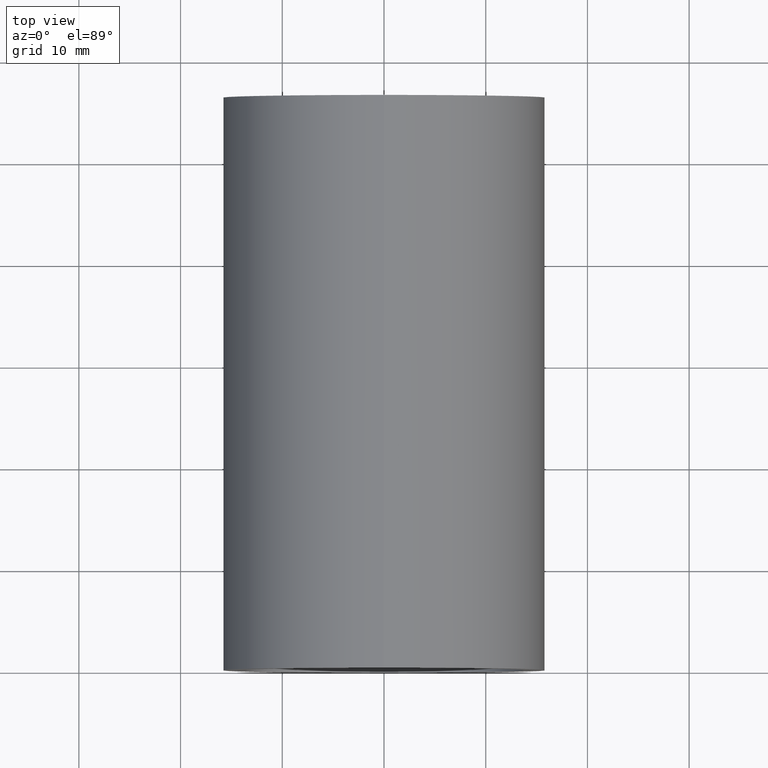
[diagram: clean part render]
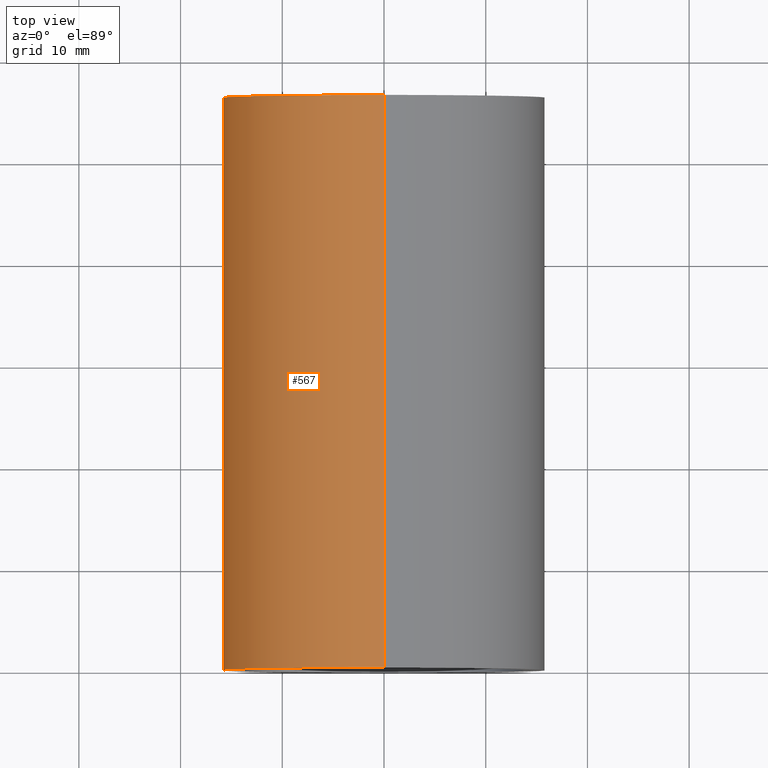
[diagram: same view with one face highlighted and labeled with its STEP entity id]
A machine part, top view. The second image highlights one B-rep face of the part: STEP entity #567.
In plain terms, the highlighted cylindrical surface (partial cylindrical patch) has radius 15.85 mm, axis along (-0, 1, -0).
Its self-contained STEP definition (entity closure, byte-faithful):
#7 = LINE ( 'NONE', #386, #153 ) ;
#11 = CARTESIAN_POINT ( 'NONE',  ( 1.941065176648557100E-015, 56.29999999999999000, -15.85000000000002100 ) ) ;
#19 = DIRECTION ( 'NONE',  ( -0.0000000000000000000, 1.000000000000000000, -0.0000000000000000000 ) ) ;
#43 = CIRCLE ( 'NONE', #75, 15.85000000000002100 ) ;
#75 = AXIS2_PLACEMENT_3D ( 'NONE', #446, #244, #455 ) ;
#77 = VERTEX_POINT ( 'NONE', #110 ) ;
#87 = LINE ( 'NONE', #623, #592 ) ;
#90 = ORIENTED_EDGE ( 'NONE', *, *, #381, .T. ) ;
#96 = EDGE_CURVE ( 'NONE', #375, #77, #620, .T. ) ;
#110 = CARTESIAN_POINT ( 'NONE',  ( 0.0000000000000000000, 56.29999999999999000, 15.85000000000002100 ) ) ;
#153 = VECTOR ( 'NONE', #435, 1000.000000000000000 ) ;
#156 = EDGE_LOOP ( 'NONE', ( #417, #90, #341, #489 ) ) ;
#182 = EDGE_CURVE ( 'NONE', #361, #77, #7, .T. ) ;
#188 = CYLINDRICAL_SURFACE ( 'NONE', #492, 15.85000000000002100 ) ;
#244 = DIRECTION ( 'NONE',  ( -0.0000000000000000000, 1.000000000000000000, -0.0000000000000000000 ) ) ;
#262 = CARTESIAN_POINT ( 'NONE',  ( 0.0000000000000000000, 161.3761669434274500, 0.0000000000000000000 ) ) ;
#267 = CARTESIAN_POINT ( 'NONE',  ( 0.0000000000000000000, 56.29999999999999000, 0.0000000000000000000 ) ) ;
#276 = EDGE_CURVE ( 'NONE', #340, #375, #87, .T. ) ;
#299 = CARTESIAN_POINT ( 'NONE',  ( 1.941065176648557100E-015, -2.775557561562891400E-014, -15.85000000000002100 ) ) ;
#306 = CARTESIAN_POINT ( 'NONE',  ( 0.0000000000000000000, -2.775557561562891400E-014, 15.85000000000002100 ) ) ;
#313 = DIRECTION ( 'NONE',  ( -0.0000000000000000000, 1.000000000000000000, -0.0000000000000000000 ) ) ;
#340 = VERTEX_POINT ( 'NONE', #299 ) ;
#341 = ORIENTED_EDGE ( 'NONE', *, *, #182, .T. ) ;
#361 = VERTEX_POINT ( 'NONE', #306 ) ;
#375 = VERTEX_POINT ( 'NONE', #11 ) ;
#381 = EDGE_CURVE ( 'NONE', #340, #361, #43, .T. ) ;
#386 = CARTESIAN_POINT ( 'NONE',  ( 0.0000000000000000000, 161.3761669434274500, 15.85000000000002100 ) ) ;
#417 = ORIENTED_EDGE ( 'NONE', *, *, #276, .F. ) ;
#435 = DIRECTION ( 'NONE',  ( -0.0000000000000000000, 1.000000000000000000, -0.0000000000000000000 ) ) ;
#439 = DIRECTION ( 'NONE',  ( -0.0000000000000000000, 1.000000000000000000, -0.0000000000000000000 ) ) ;
#446 = CARTESIAN_POINT ( 'NONE',  ( 0.0000000000000000000, -2.775557561562891400E-014, 0.0000000000000000000 ) ) ;
#451 = FACE_OUTER_BOUND ( 'NONE', #156, .T. ) ;
#455 = DIRECTION ( 'NONE',  ( 0.0000000000000000000, 0.0000000000000000000, 1.000000000000000000 ) ) ;
#467 = DIRECTION ( 'NONE',  ( 0.0000000000000000000, 0.0000000000000000000, 1.000000000000000000 ) ) ;
#489 = ORIENTED_EDGE ( 'NONE', *, *, #96, .F. ) ;
#492 = AXIS2_PLACEMENT_3D ( 'NONE', #262, #19, #551 ) ;
#536 = AXIS2_PLACEMENT_3D ( 'NONE', #267, #313, #467 ) ;
#551 = DIRECTION ( 'NONE',  ( 0.0000000000000000000, 0.0000000000000000000, 1.000000000000000000 ) ) ;
#567 = ADVANCED_FACE ( 'NONE', ( #451 ), #188, .T. ) ;
#592 = VECTOR ( 'NONE', #439, 1000.000000000000000 ) ;
#620 = CIRCLE ( 'NONE', #536, 15.85000000000002100 ) ;
#623 = CARTESIAN_POINT ( 'NONE',  ( 1.941065176648557100E-015, 161.3761669434274500, -15.85000000000002100 ) ) ;